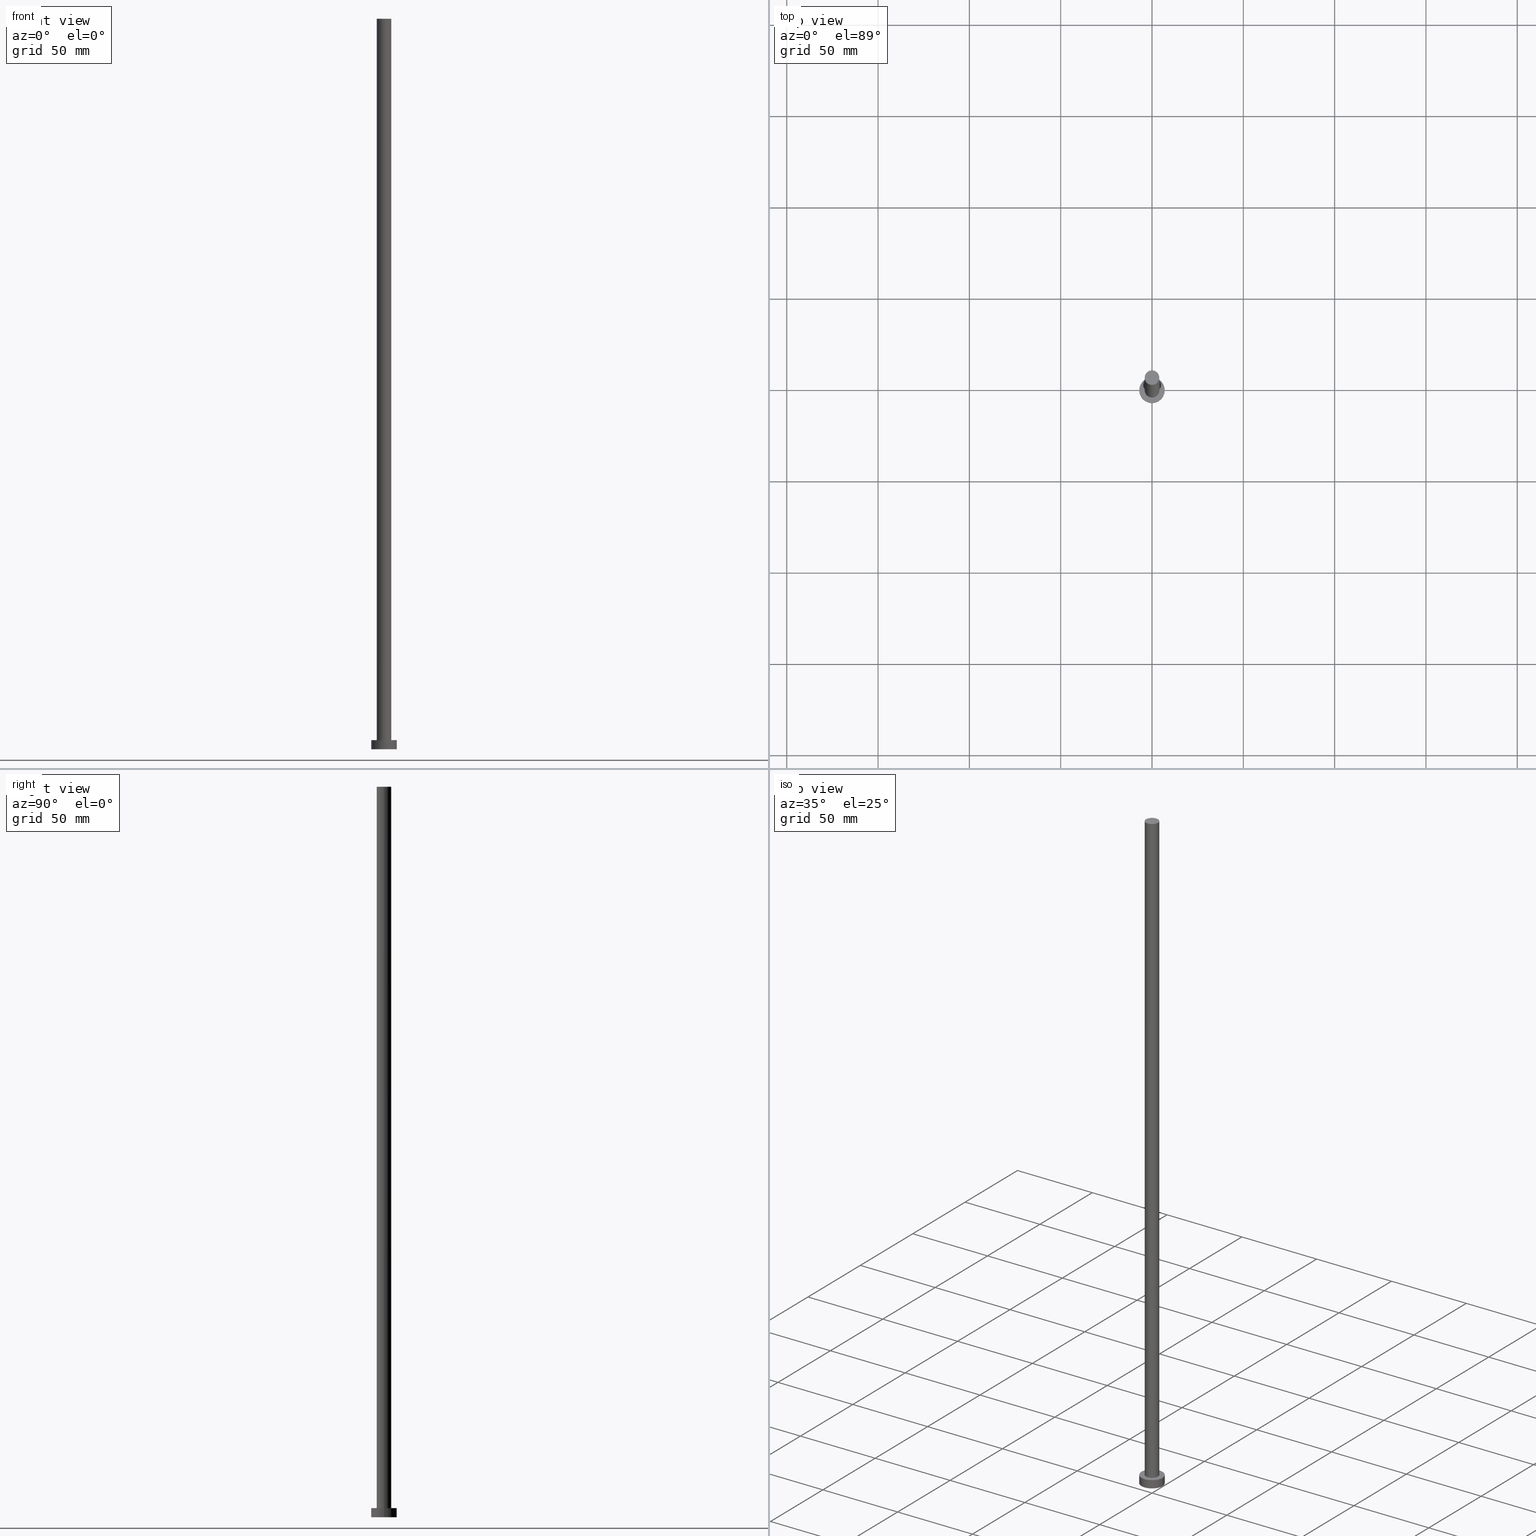
[diagram: canonical four-view strip — front | top / right | iso, engineering-drawing reading convention]
A machine part, canonical four-view strip (front | top / right | iso — engineering-drawing reading convention). The complete STEP part file that produces these views, byte-faithful:
ISO-10303-21;
HEADER;
FILE_DESCRIPTION (( 'STEP AP203' ),
    '1' );
FILE_NAME ('f600.STEP',
    '2023-02-13T11:44:14',
    ( '' ),
    ( '' ),
    'SwSTEP 2.0',
    'SolidWorks 2019',
    '' );
FILE_SCHEMA (( 'CONFIG_CONTROL_DESIGN' ));
ENDSEC;

DATA;
#1 = PRODUCT_DEFINITION_FORMATION_WITH_SPECIFIED_SOURCE ( 'LIBOVOLN�', '', #178, .NOT_KNOWN. ) ;
#2 = DIRECTION ( 'NONE',  ( 0.000000000000000000, 0.000000000000000000, 1.000000000000000000 ) ) ;
#3 = ORIENTED_EDGE ( 'NONE', *, *, #176, .F. ) ;
#4 = ORIENTED_EDGE ( 'NONE', *, *, #195, .T. ) ;
#5 = PERSON_AND_ORGANIZATION ( #94, #210 ) ;
#6 = DATE_AND_TIME ( #207, #203 ) ;
#7 = APPROVAL_DATE_TIME ( #53, #103 ) ;
#8 = FACE_OUTER_BOUND ( 'NONE', #212, .T. ) ;
#9 = CARTESIAN_POINT ( 'NONE',  ( 0.000000000000000000, 0.000000000000000000, 400.0000000000000000 ) ) ;
#10 = DIRECTION ( 'NONE',  ( -0.000000000000000000, -0.000000000000000000, -1.000000000000000000 ) ) ;
#11 = CARTESIAN_POINT ( 'NONE',  ( 4.000000000000000000, 4.898587196589411843E-16, 5.000000000000000000 ) ) ;
#12 = EDGE_CURVE ( 'NONE', #132, #41, #198, .T. ) ;
#13 = FACE_OUTER_BOUND ( 'NONE', #40, .T. ) ;
#14 = VECTOR ( 'NONE', #10, 1000.000000000000000 ) ;
#15 = LINE ( 'NONE', #68, #116 ) ;
#16 = CC_DESIGN_SECURITY_CLASSIFICATION ( #225, ( #1 ) ) ;
#17 = DIRECTION ( 'NONE',  ( 1.000000000000000000, 0.000000000000000000, 0.000000000000000000 ) ) ;
#18 = DATE_AND_TIME ( #92, #99 ) ;
#19 = CIRCLE ( 'NONE', #161, 7.000000000000000000 ) ;
#20 = PERSON_AND_ORGANIZATION_ROLE ( 'creator' ) ;
#21 = EDGE_CURVE ( 'NONE', #121, #233, #223, .T. ) ;
#22 = PERSON_AND_ORGANIZATION ( #94, #210 ) ;
#23 = VECTOR ( 'NONE', #42, 1000.000000000000000 ) ;
#24 = PRODUCT_DEFINITION ( 'NEZN�M�', '', #1, #77 ) ;
#25 = PLANE ( 'NONE',  #61 ) ;
#26 = CYLINDRICAL_SURFACE ( 'NONE', #43, 7.000000000000000000 ) ;
#27 = DIRECTION ( 'NONE',  ( 0.000000000000000000, 0.000000000000000000, 1.000000000000000000 ) ) ;
#28 = CARTESIAN_POINT ( 'NONE',  ( -7.000000000000000000, 0.000000000000000000, 5.000000000000000000 ) ) ;
#29 = CC_DESIGN_APPROVAL ( #103, ( #1 ) ) ;
#30 = DIRECTION ( 'NONE',  ( 0.000000000000000000, 0.000000000000000000, 1.000000000000000000 ) ) ;
#31 = DIRECTION ( 'NONE',  ( 1.000000000000000000, 0.000000000000000000, 0.000000000000000000 ) ) ;
#32 = CC_DESIGN_PERSON_AND_ORGANIZATION_ASSIGNMENT ( #155, #20, ( #1 ) ) ;
#33 = CARTESIAN_POINT ( 'NONE',  ( 0.000000000000000000, 0.000000000000000000, 0.000000000000000000 ) ) ;
#34 = FACE_OUTER_BOUND ( 'NONE', #221, .T. ) ;
#35 = ORIENTED_EDGE ( 'NONE', *, *, #209, .F. ) ;
#36 = CARTESIAN_POINT ( 'NONE',  ( 0.000000000000000000, 0.000000000000000000, 0.000000000000000000 ) ) ;
#37 = ADVANCED_FACE ( 'NONE', ( #85 ), #224, .F. ) ;
#38 = APPROVAL_ROLE ( '' ) ;
#39 = ORIENTED_EDGE ( 'NONE', *, *, #76, .T. ) ;
#40 = EDGE_LOOP ( 'NONE', ( #35, #4, #71, #112 ) ) ;
#41 = VERTEX_POINT ( 'NONE', #167 ) ;
#42 = DIRECTION ( 'NONE',  ( -0.000000000000000000, -0.000000000000000000, -1.000000000000000000 ) ) ;
#43 = AXIS2_PLACEMENT_3D ( 'NONE', #140, #96, #60 ) ;
#44 = DIRECTION ( 'NONE',  ( 1.000000000000000000, 0.000000000000000000, 0.000000000000000000 ) ) ;
#45 = DIRECTION ( 'NONE',  ( 0.000000000000000000, 0.000000000000000000, 1.000000000000000000 ) ) ;
#46 = DIRECTION ( 'NONE',  ( 0.000000000000000000, 0.000000000000000000, 1.000000000000000000 ) ) ;
#47 = PERSON_AND_ORGANIZATION_ROLE ( 'design_owner' ) ;
#48 = CARTESIAN_POINT ( 'NONE',  ( 0.000000000000000000, 0.000000000000000000, 5.000000000000000000 ) ) ;
#49 = APPROVAL_ROLE ( '' ) ;
#50 = AXIS2_PLACEMENT_3D ( 'NONE', #247, #98, #44 ) ;
#51 = ORIENTED_EDGE ( 'NONE', *, *, #176, .T. ) ;
#52 = SECURITY_CLASSIFICATION_LEVEL ( 'unclassified' ) ;
#53 = DATE_AND_TIME ( #152, #115 ) ;
#54 = EDGE_LOOP ( 'NONE', ( #237, #175 ) ) ;
#55 = DATE_TIME_ROLE ( 'classification_date' ) ;
#56 = ORIENTED_EDGE ( 'NONE', *, *, #125, .T. ) ;
#57 = CIRCLE ( 'NONE', #154, 4.000000000000000000 ) ;
#58 = PERSON_AND_ORGANIZATION_ROLE ( 'design_supplier' ) ;
#59 = CARTESIAN_POINT ( 'NONE',  ( 0.000000000000000000, 0.000000000000000000, 400.0000000000000000 ) ) ;
#60 = DIRECTION ( 'NONE',  ( -1.000000000000000000, 0.000000000000000000, 0.000000000000000000 ) ) ;
#61 = AXIS2_PLACEMENT_3D ( 'NONE', #162, #27, #81 ) ;
#62 = LINE ( 'NONE', #100, #23 ) ;
#63 = FACE_OUTER_BOUND ( 'NONE', #215, .T. ) ;
#64 = DIRECTION ( 'NONE',  ( 1.000000000000000000, 0.000000000000000000, -0.000000000000000000 ) ) ;
#65 = ADVANCED_FACE ( 'NONE', ( #63 ), #227, .T. ) ;
#66 = FACE_OUTER_BOUND ( 'NONE', #128, .T. ) ;
#67 = ADVANCED_FACE ( 'NONE', ( #8 ), #79, .T. ) ;
#68 = CARTESIAN_POINT ( 'NONE',  ( 7.000000000000000000, 8.572527594031473190E-16, 5.000000000000000000 ) ) ;
#69 = ORIENTED_EDGE ( 'NONE', *, *, #76, .F. ) ;
#70 = DIRECTION ( 'NONE',  ( 1.000000000000000000, 0.000000000000000000, 0.000000000000000000 ) ) ;
#71 = ORIENTED_EDGE ( 'NONE', *, *, #217, .T. ) ;
#72 = APPROVAL_PERSON_ORGANIZATION ( #144, #171, #186 ) ;
#73 = CALENDAR_DATE ( 2023, 13, 2 ) ;
#74 = PERSON_AND_ORGANIZATION ( #94, #210 ) ;
#75 = VERTEX_POINT ( 'NONE', #160 ) ;
#76 = EDGE_CURVE ( 'NONE', #233, #121, #148, .T. ) ;
#77 = DESIGN_CONTEXT ( 'detailed design', #204, 'design' ) ;
#78 = LOCAL_TIME ( 12, 44, 14.00000000000000000, #159 ) ;
#79 = PLANE ( 'NONE',  #251 ) ;
#80 = DIRECTION ( 'NONE',  ( 1.000000000000000000, 0.000000000000000000, 0.000000000000000000 ) ) ;
#81 = DIRECTION ( 'NONE',  ( 1.000000000000000000, 0.000000000000000000, -0.000000000000000000 ) ) ;
#82 = AXIS2_PLACEMENT_3D ( 'NONE', #97, #30, #200 ) ;
#83 = CARTESIAN_POINT ( 'NONE',  ( 4.000000000000000000, 4.898587196589411843E-16, 400.0000000000000000 ) ) ;
#84 = MANIFOLD_SOLID_BREP ( 'P�idat vysunut�m3', #118 ) ;
#85 = FACE_OUTER_BOUND ( 'NONE', #133, .T. ) ;
#86 = CARTESIAN_POINT ( 'NONE',  ( 0.000000000000000000, 0.000000000000000000, 5.000000000000000000 ) ) ;
#87 = EDGE_CURVE ( 'NONE', #88, #153, #57, .T. ) ;
#88 = VERTEX_POINT ( 'NONE', #11 ) ;
#89 = CARTESIAN_POINT ( 'NONE',  ( -4.000000000000000000, 0.000000000000000000, 400.0000000000000000 ) ) ;
#90 = CARTESIAN_POINT ( 'NONE',  ( 0.000000000000000000, 0.000000000000000000, 5.000000000000000000 ) ) ;
#91 = DATE_AND_TIME ( #241, #78 ) ;
#92 = CALENDAR_DATE ( 2023, 13, 2 ) ;
#93 = APPROVAL_STATUS ( 'not_yet_approved' ) ;
#94 = PERSON ( 'NEUR�EN�', 'NEUR�EN�', 'NEUR�EN�', ('NEUR�EN�'), ('NEUR�EN�'), ('NEUR�EN�') ) ;
#95 = AXIS2_PLACEMENT_3D ( 'NONE', #59, #45, #248 ) ;
#96 = DIRECTION ( 'NONE',  ( -0.000000000000000000, -0.000000000000000000, -1.000000000000000000 ) ) ;
#97 = CARTESIAN_POINT ( 'NONE',  ( 0.000000000000000000, 0.000000000000000000, 0.000000000000000000 ) ) ;
#98 = DIRECTION ( 'NONE',  ( 0.000000000000000000, 0.000000000000000000, 1.000000000000000000 ) ) ;
#99 = LOCAL_TIME ( 12, 44, 14.00000000000000000, #174 ) ;
#100 = CARTESIAN_POINT ( 'NONE',  ( -4.000000000000000000, 0.000000000000000000, 400.0000000000000000 ) ) ;
#101 = DIRECTION ( 'NONE',  ( 1.000000000000000000, 0.000000000000000000, 0.000000000000000000 ) ) ;
#102 = APPROVAL_STATUS ( 'not_yet_approved' ) ;
#103 = APPROVAL ( #107, 'NEUR�EN�' ) ;
#104 = DIRECTION ( 'NONE',  ( -1.000000000000000000, 0.000000000000000000, 0.000000000000000000 ) ) ;
#105 = ORIENTED_EDGE ( 'NONE', *, *, #12, .F. ) ;
#106 =( NAMED_UNIT ( * ) SI_UNIT ( $, .STERADIAN. ) SOLID_ANGLE_UNIT ( ) );
#107 = APPROVAL_STATUS ( 'not_yet_approved' ) ;
#108 = PERSON_AND_ORGANIZATION ( #94, #210 ) ;
#109 = CC_DESIGN_PERSON_AND_ORGANIZATION_ASSIGNMENT ( #196, #242, ( #24 ) ) ;
#110 = ADVANCED_BREP_SHAPE_REPRESENTATION ( 'f600', ( #84, #220 ), #165 ) ;
#111 = DATE_TIME_ROLE ( 'creation_date' ) ;
#112 = ORIENTED_EDGE ( 'NONE', *, *, #138, .F. ) ;
#113 = FACE_BOUND ( 'NONE', #158, .T. ) ;
#114 = CC_DESIGN_DATE_AND_TIME_ASSIGNMENT ( #18, #111, ( #24 ) ) ;
#115 = LOCAL_TIME ( 12, 44, 14.00000000000000000, #238 ) ;
#116 = VECTOR ( 'NONE', #255, 1000.000000000000000 ) ;
#117 = COORDINATED_UNIVERSAL_TIME_OFFSET ( 1, 0, .AHEAD. ) ;
#118 = CLOSED_SHELL ( 'NONE', ( #65, #164, #254, #141, #37, #229, #67 ) ) ;
#119 = DIRECTION ( 'NONE',  ( -1.000000000000000000, 0.000000000000000000, 0.000000000000000000 ) ) ;
#120 = CC_DESIGN_APPROVAL ( #216, ( #225 ) ) ;
#121 = VERTEX_POINT ( 'NONE', #139 ) ;
#122 = DIRECTION ( 'NONE',  ( -0.000000000000000000, -0.000000000000000000, -1.000000000000000000 ) ) ;
#123 = ORIENTED_EDGE ( 'NONE', *, *, #21, .T. ) ;
#124 =( NAMED_UNIT ( * ) PLANE_ANGLE_UNIT ( ) SI_UNIT ( $, .RADIAN. ) );
#125 = EDGE_CURVE ( 'NONE', #233, #153, #62, .T. ) ;
#126 = CIRCLE ( 'NONE', #218, 4.000000000000000000 ) ;
#127 = AXIS2_PLACEMENT_3D ( 'NONE', #244, #183, #80 ) ;
#128 = EDGE_LOOP ( 'NONE', ( #3, #69, #56, #213 ) ) ;
#129 = CC_DESIGN_APPROVAL ( #171, ( #24 ) ) ;
#130 = ORIENTED_EDGE ( 'NONE', *, *, #195, .F. ) ;
#131 = COORDINATED_UNIVERSAL_TIME_OFFSET ( 1, 0, .AHEAD. ) ;
#132 = VERTEX_POINT ( 'NONE', #182 ) ;
#133 = EDGE_LOOP ( 'NONE', ( #105, #189 ) ) ;
#134 = APPROVAL_PERSON_ORGANIZATION ( #5, #103, #49 ) ;
#135 = ORIENTED_EDGE ( 'NONE', *, *, #188, .F. ) ;
#136 = CARTESIAN_POINT ( 'NONE',  ( 0.000000000000000000, 0.000000000000000000, 5.000000000000000000 ) ) ;
#137 = PRODUCT_DEFINITION_SHAPE ( 'NONE', 'NONE',  #24 ) ;
#138 = EDGE_CURVE ( 'NONE', #75, #132, #201, .T. ) ;
#139 = CARTESIAN_POINT ( 'NONE',  ( 4.000000000000000000, 4.898587196589411843E-16, 400.0000000000000000 ) ) ;
#140 = CARTESIAN_POINT ( 'NONE',  ( 0.000000000000000000, 0.000000000000000000, 5.000000000000000000 ) ) ;
#141 = ADVANCED_FACE ( 'NONE', ( #113, #163 ), #25, .T. ) ;
#142 = ORIENTED_EDGE ( 'NONE', *, *, #240, .F. ) ;
#143 = LOCAL_TIME ( 12, 44, 14.00000000000000000, #131 ) ;
#144 = PERSON_AND_ORGANIZATION ( #94, #210 ) ;
#145 = DIRECTION ( 'NONE',  ( 0.000000000000000000, 0.000000000000000000, 1.000000000000000000 ) ) ;
#146 = CC_DESIGN_PERSON_AND_ORGANIZATION_ASSIGNMENT ( #108, #197, ( #225 ) ) ;
#147 = CARTESIAN_POINT ( 'NONE',  ( 0.000000000000000000, 0.000000000000000000, 400.0000000000000000 ) ) ;
#148 = CIRCLE ( 'NONE', #127, 4.000000000000000000 ) ;
#149 = CARTESIAN_POINT ( 'NONE',  ( 7.000000000000000000, 8.572527594031473190E-16, 5.000000000000000000 ) ) ;
#150 = PRODUCT_RELATED_PRODUCT_CATEGORY ( 'detail', '', ( #178 ) ) ;
#151 = ORIENTED_EDGE ( 'NONE', *, *, #87, .F. ) ;
#152 = CALENDAR_DATE ( 2023, 13, 2 ) ;
#153 = VERTEX_POINT ( 'NONE', #184 ) ;
#154 = AXIS2_PLACEMENT_3D ( 'NONE', #136, #222, #199 ) ;
#155 = PERSON_AND_ORGANIZATION ( #94, #210 ) ;
#156 = AXIS2_PLACEMENT_3D ( 'NONE', #48, #122, #104 ) ;
#157 = SHAPE_DEFINITION_REPRESENTATION ( #137, #110 ) ;
#158 = EDGE_LOOP ( 'NONE', ( #142, #151 ) ) ;
#159 = COORDINATED_UNIVERSAL_TIME_OFFSET ( 1, 0, .AHEAD. ) ;
#160 = CARTESIAN_POINT ( 'NONE',  ( -7.000000000000000000, 0.000000000000000000, 5.000000000000000000 ) ) ;
#161 = AXIS2_PLACEMENT_3D ( 'NONE', #86, #46, #190 ) ;
#162 = CARTESIAN_POINT ( 'NONE',  ( 0.000000000000000000, 0.000000000000000000, 5.000000000000000000 ) ) ;
#163 = FACE_OUTER_BOUND ( 'NONE', #54, .T. ) ;
#164 = ADVANCED_FACE ( 'NONE', ( #13 ), #26, .T. ) ;
#165 =( GEOMETRIC_REPRESENTATION_CONTEXT ( 3 ) GLOBAL_UNCERTAINTY_ASSIGNED_CONTEXT ( ( #179 ) ) GLOBAL_UNIT_ASSIGNED_CONTEXT ( ( #172, #124, #106 ) ) REPRESENTATION_CONTEXT ( 'NONE', 'WORKASPACE' ) );
#166 = CARTESIAN_POINT ( 'NONE',  ( 0.000000000000000000, 0.000000000000000000, 5.000000000000000000 ) ) ;
#167 = CARTESIAN_POINT ( 'NONE',  ( 7.000000000000000000, 8.572527594031473190E-16, 0.000000000000000000 ) ) ;
#168 = PERSON_AND_ORGANIZATION ( #94, #210 ) ;
#169 = VECTOR ( 'NONE', #202, 1000.000000000000000 ) ;
#170 = ORIENTED_EDGE ( 'NONE', *, *, #138, .T. ) ;
#171 = APPROVAL ( #102, 'NEUR�EN�' ) ;
#172 =( LENGTH_UNIT ( ) NAMED_UNIT ( * ) SI_UNIT ( .MILLI., .METRE. ) );
#173 = APPROVAL_DATE_TIME ( #6, #171 ) ;
#174 = COORDINATED_UNIVERSAL_TIME_OFFSET ( 1, 0, .AHEAD. ) ;
#175 = ORIENTED_EDGE ( 'NONE', *, *, #209, .T. ) ;
#176 = EDGE_CURVE ( 'NONE', #121, #88, #246, .T. ) ;
#177 = DIRECTION ( 'NONE',  ( -1.000000000000000000, 0.000000000000000000, 0.000000000000000000 ) ) ;
#178 = PRODUCT ( 'f600', 'f600', '', ( #185 ) ) ;
#179 = UNCERTAINTY_MEASURE_WITH_UNIT (LENGTH_MEASURE( 1.000000000000000082E-05 ), #172, 'distance_accuracy_value', 'NONE');
#180 = CARTESIAN_POINT ( 'NONE',  ( 0.000000000000000000, 0.000000000000000000, 400.0000000000000000 ) ) ;
#181 = CC_DESIGN_PERSON_AND_ORGANIZATION_ASSIGNMENT ( #168, #47, ( #178 ) ) ;
#182 = CARTESIAN_POINT ( 'NONE',  ( -7.000000000000000000, 0.000000000000000000, 0.000000000000000000 ) ) ;
#183 = DIRECTION ( 'NONE',  ( 0.000000000000000000, 0.000000000000000000, 1.000000000000000000 ) ) ;
#184 = CARTESIAN_POINT ( 'NONE',  ( -4.000000000000000000, 0.000000000000000000, 5.000000000000000000 ) ) ;
#185 = MECHANICAL_CONTEXT ( 'NONE', #206, 'mechanical' ) ;
#186 = APPROVAL_ROLE ( '' ) ;
#187 = CYLINDRICAL_SURFACE ( 'NONE', #230, 4.000000000000000000 ) ;
#188 = EDGE_CURVE ( 'NONE', #75, #214, #208, .T. ) ;
#189 = ORIENTED_EDGE ( 'NONE', *, *, #217, .F. ) ;
#190 = DIRECTION ( 'NONE',  ( 1.000000000000000000, 0.000000000000000000, 0.000000000000000000 ) ) ;
#191 = ORIENTED_EDGE ( 'NONE', *, *, #87, .T. ) ;
#192 = AXIS2_PLACEMENT_3D ( 'NONE', #180, #250, #177 ) ;
#193 = APPROVAL_PERSON_ORGANIZATION ( #22, #216, #38 ) ;
#194 = DATE_AND_TIME ( #73, #143 ) ;
#195 = EDGE_CURVE ( 'NONE', #214, #41, #15, .T. ) ;
#196 = PERSON_AND_ORGANIZATION ( #94, #210 ) ;
#197 = PERSON_AND_ORGANIZATION_ROLE ( 'classification_officer' ) ;
#198 = CIRCLE ( 'NONE', #50, 7.000000000000000000 ) ;
#199 = DIRECTION ( 'NONE',  ( 1.000000000000000000, 0.000000000000000000, 0.000000000000000000 ) ) ;
#200 = DIRECTION ( 'NONE',  ( 1.000000000000000000, 0.000000000000000000, -0.000000000000000000 ) ) ;
#201 = LINE ( 'NONE', #28, #169 ) ;
#202 = DIRECTION ( 'NONE',  ( -0.000000000000000000, -0.000000000000000000, -1.000000000000000000 ) ) ;
#203 = LOCAL_TIME ( 12, 44, 14.00000000000000000, #117 ) ;
#204 = APPLICATION_CONTEXT ( 'configuration controlled 3d designs of mechanical parts and assemblies' ) ;
#205 = APPLICATION_PROTOCOL_DEFINITION ( 'international standard', 'config_control_design', 1994, #206 ) ;
#206 = APPLICATION_CONTEXT ( 'configuration controlled 3d designs of mechanical parts and assemblies' ) ;
#207 = CALENDAR_DATE ( 2023, 13, 2 ) ;
#208 = CIRCLE ( 'NONE', #239, 7.000000000000000000 ) ;
#209 = EDGE_CURVE ( 'NONE', #214, #75, #19, .T. ) ;
#210 = ORGANIZATION ( 'NEUR�EN�', 'NEUR�EN�', '' ) ;
#211 = DIRECTION ( 'NONE',  ( -0.000000000000000000, -0.000000000000000000, -1.000000000000000000 ) ) ;
#212 = EDGE_LOOP ( 'NONE', ( #39, #123 ) ) ;
#213 = ORIENTED_EDGE ( 'NONE', *, *, #240, .T. ) ;
#214 = VERTEX_POINT ( 'NONE', #149 ) ;
#215 = EDGE_LOOP ( 'NONE', ( #243, #51, #191, #236 ) ) ;
#216 = APPROVAL ( #93, 'NEUR�EN�' ) ;
#217 = EDGE_CURVE ( 'NONE', #41, #132, #228, .T. ) ;
#218 = AXIS2_PLACEMENT_3D ( 'NONE', #90, #145, #101 ) ;
#219 = ORIENTED_EDGE ( 'NONE', *, *, #12, .T. ) ;
#220 = AXIS2_PLACEMENT_3D ( 'NONE', #36, #2, #70 ) ;
#221 = EDGE_LOOP ( 'NONE', ( #130, #135, #170, #219 ) ) ;
#222 = DIRECTION ( 'NONE',  ( 0.000000000000000000, 0.000000000000000000, 1.000000000000000000 ) ) ;
#223 = CIRCLE ( 'NONE', #95, 4.000000000000000000 ) ;
#224 = PLANE ( 'NONE',  #82 ) ;
#225 = SECURITY_CLASSIFICATION ( '', '', #52 ) ;
#226 = DIRECTION ( 'NONE',  ( 0.000000000000000000, 0.000000000000000000, 1.000000000000000000 ) ) ;
#227 = CYLINDRICAL_SURFACE ( 'NONE', #192, 4.000000000000000000 ) ;
#228 = CIRCLE ( 'NONE', #245, 7.000000000000000000 ) ;
#229 = ADVANCED_FACE ( 'NONE', ( #66 ), #187, .T. ) ;
#230 = AXIS2_PLACEMENT_3D ( 'NONE', #147, #211, #119 ) ;
#231 = CYLINDRICAL_SURFACE ( 'NONE', #156, 7.000000000000000000 ) ;
#232 = DIRECTION ( 'NONE',  ( 0.000000000000000000, 0.000000000000000000, 1.000000000000000000 ) ) ;
#233 = VERTEX_POINT ( 'NONE', #89 ) ;
#234 = APPROVAL_DATE_TIME ( #194, #216 ) ;
#235 = CC_DESIGN_DATE_AND_TIME_ASSIGNMENT ( #91, #55, ( #225 ) ) ;
#236 = ORIENTED_EDGE ( 'NONE', *, *, #125, .F. ) ;
#237 = ORIENTED_EDGE ( 'NONE', *, *, #188, .T. ) ;
#238 = COORDINATED_UNIVERSAL_TIME_OFFSET ( 1, 0, .AHEAD. ) ;
#239 = AXIS2_PLACEMENT_3D ( 'NONE', #166, #253, #31 ) ;
#240 = EDGE_CURVE ( 'NONE', #153, #88, #126, .T. ) ;
#241 = CALENDAR_DATE ( 2023, 13, 2 ) ;
#242 = PERSON_AND_ORGANIZATION_ROLE ( 'creator' ) ;
#243 = ORIENTED_EDGE ( 'NONE', *, *, #21, .F. ) ;
#244 = CARTESIAN_POINT ( 'NONE',  ( 0.000000000000000000, 0.000000000000000000, 400.0000000000000000 ) ) ;
#245 = AXIS2_PLACEMENT_3D ( 'NONE', #33, #232, #17 ) ;
#246 = LINE ( 'NONE', #83, #14 ) ;
#247 = CARTESIAN_POINT ( 'NONE',  ( 0.000000000000000000, 0.000000000000000000, 0.000000000000000000 ) ) ;
#248 = DIRECTION ( 'NONE',  ( 1.000000000000000000, 0.000000000000000000, 0.000000000000000000 ) ) ;
#249 = CC_DESIGN_PERSON_AND_ORGANIZATION_ASSIGNMENT ( #74, #58, ( #1 ) ) ;
#250 = DIRECTION ( 'NONE',  ( -0.000000000000000000, -0.000000000000000000, -1.000000000000000000 ) ) ;
#251 = AXIS2_PLACEMENT_3D ( 'NONE', #9, #226, #64 ) ;
#252 = APPLICATION_PROTOCOL_DEFINITION ( 'international standard', 'config_control_design', 1994, #204 ) ;
#253 = DIRECTION ( 'NONE',  ( 0.000000000000000000, 0.000000000000000000, 1.000000000000000000 ) ) ;
#254 = ADVANCED_FACE ( 'NONE', ( #34 ), #231, .T. ) ;
#255 = DIRECTION ( 'NONE',  ( -0.000000000000000000, -0.000000000000000000, -1.000000000000000000 ) ) ;
ENDSEC;
END-ISO-10303-21;
